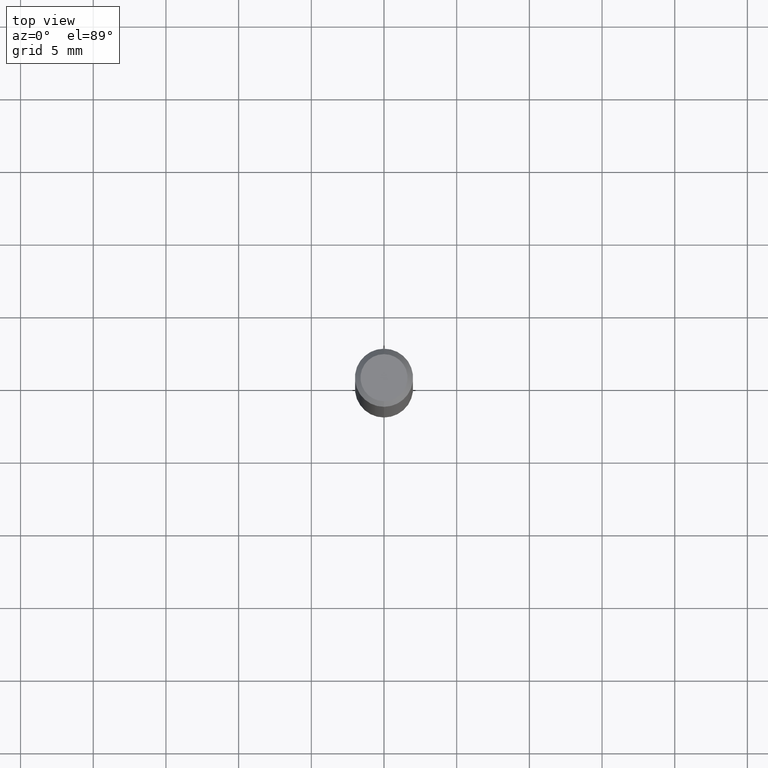
[diagram: clean part render]
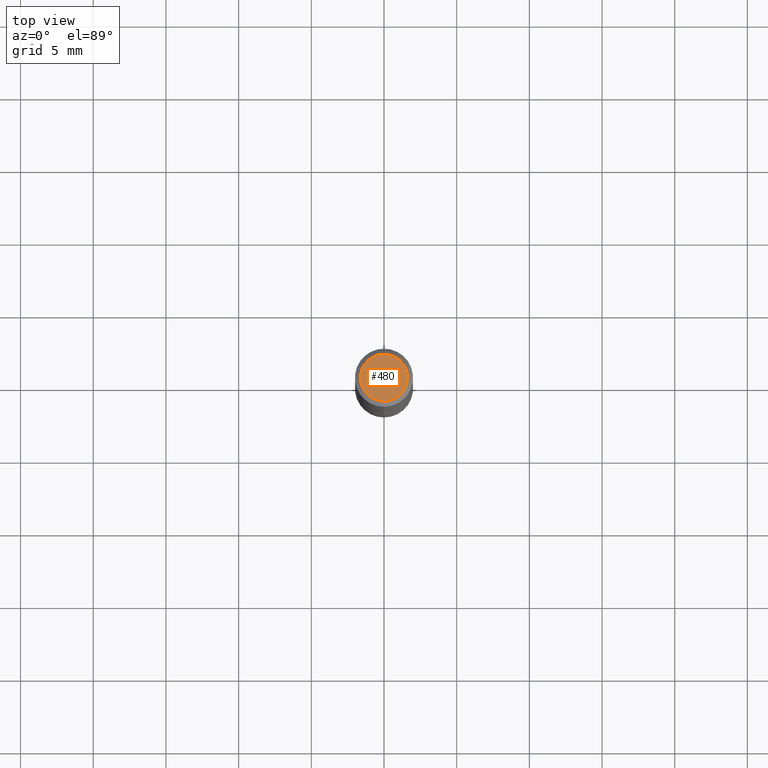
[diagram: same view with one face highlighted and labeled with its STEP entity id]
A machine part, top view. The second image highlights one B-rep face of the part: STEP entity #480.
In plain terms, the highlighted planar face has unit normal (0, -0, -1).
Its self-contained STEP definition (entity closure, byte-faithful):
#36 = CARTESIAN_POINT ( 'NONE',  ( -5.749252365424432969E-45, 8.208569393781345367E-31, 2.351004663308204061E-16 ) ) ;
#37 = CIRCLE ( 'NONE', #70, 0.06375000000000000111 ) ;
#44 = CIRCLE ( 'NONE', #119, 0.06375000000000000111 ) ;
#65 = CARTESIAN_POINT ( 'NONE',  ( -4.888104823412213911E-16, -0.06375000000000000111, 4.576845840999477074E-16 ) ) ;
#70 = AXIS2_PLACEMENT_3D ( 'NONE', #36, #273, #439 ) ;
#81 = DIRECTION ( 'NONE',  ( 2.445444900706578132E-29, -3.491515572849056349E-15, -1.000000000000000000 ) ) ;
#119 = AXIS2_PLACEMENT_3D ( 'NONE', #129, #493, #280 ) ;
#129 = CARTESIAN_POINT ( 'NONE',  ( -5.749252365424432969E-45, 8.208569393781345367E-31, 2.351004663308204061E-16 ) ) ;
#163 = VERTEX_POINT ( 'NONE', #65 ) ;
#180 = ORIENTED_EDGE ( 'NONE', *, *, #399, .T. ) ;
#242 = EDGE_CURVE ( 'NONE', #339, #163, #37, .T. ) ;
#273 = DIRECTION ( 'NONE',  ( -2.445444900706578413E-29, 3.491515572849055955E-15, 1.000000000000000000 ) ) ;
#280 = DIRECTION ( 'NONE',  ( -6.982962677686264344E-15, -1.000000000000000000, 3.491515572849055560E-15 ) ) ;
#282 = ORIENTED_EDGE ( 'NONE', *, *, #242, .T. ) ;
#309 = DIRECTION ( 'NONE',  ( 6.982962677686265922E-15, 1.000000000000000000, -3.491515572849056349E-15 ) ) ;
#331 = CARTESIAN_POINT ( 'NONE',  ( 4.975360907851465623E-16, 0.06375000000000000111, 1.251634856169309859E-17 ) ) ;
#339 = VERTEX_POINT ( 'NONE', #331 ) ;
#345 = PLANE ( 'NONE',  #472 ) ;
#399 = EDGE_CURVE ( 'NONE', #163, #339, #44, .T. ) ;
#439 = DIRECTION ( 'NONE',  ( -6.982962677686264344E-15, -1.000000000000000000, 3.491515572849055560E-15 ) ) ;
#454 = EDGE_LOOP ( 'NONE', ( #282, #180 ) ) ;
#472 = AXIS2_PLACEMENT_3D ( 'NONE', #500, #81, #309 ) ;
#480 = ADVANCED_FACE ( 'NONE', ( #496 ), #345, .F. ) ;
#493 = DIRECTION ( 'NONE',  ( -2.445444900706578413E-29, 3.491515572849055955E-15, 1.000000000000000000 ) ) ;
#496 = FACE_OUTER_BOUND ( 'NONE', #454, .T. ) ;
#500 = CARTESIAN_POINT ( 'NONE',  ( 4.451638707024993845E-16, 0.06375000000000000111, -1.050338846037171229E-16 ) ) ;